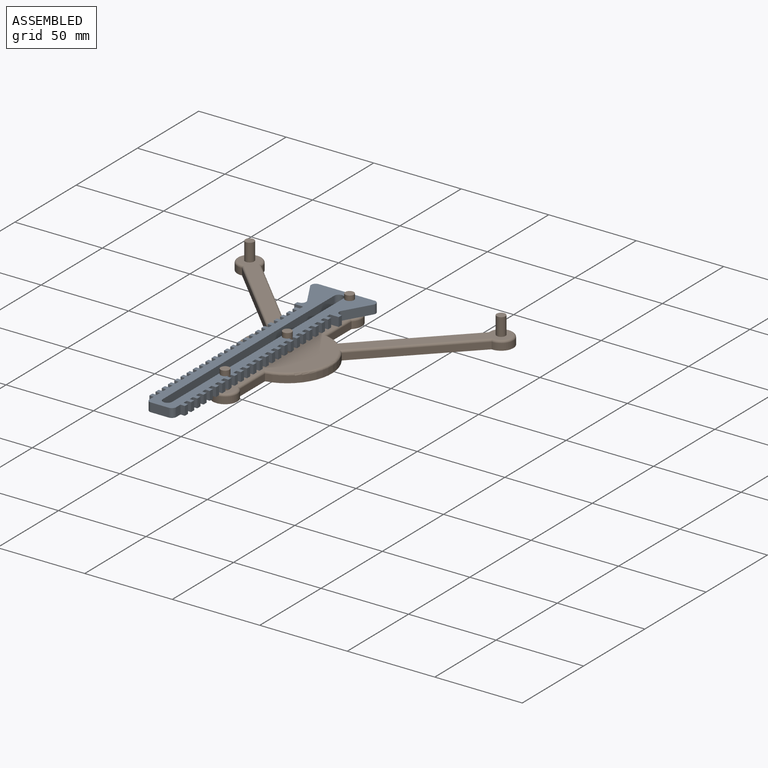
[diagram: assembled view]
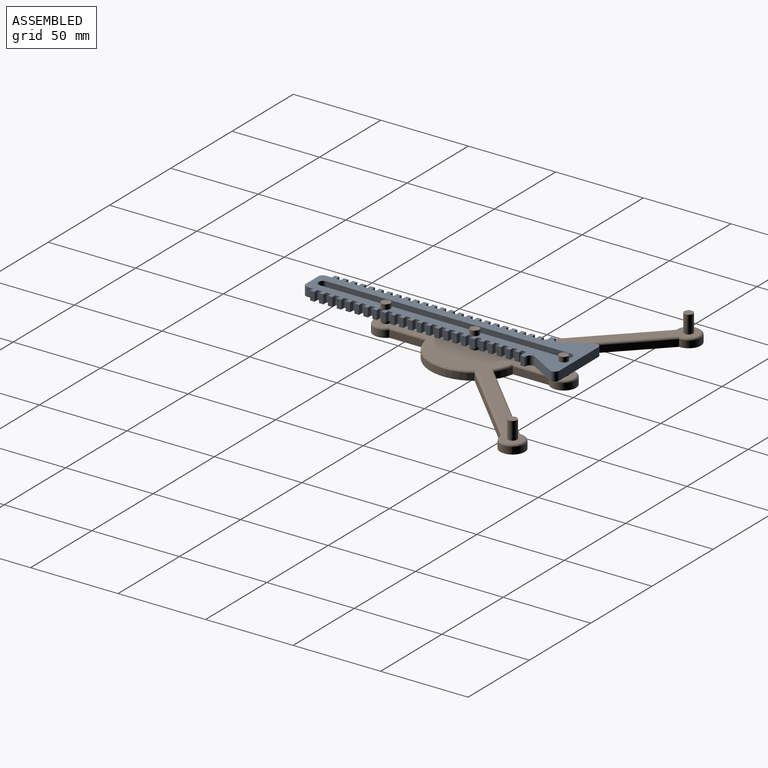
[diagram: assembled view, second angle]
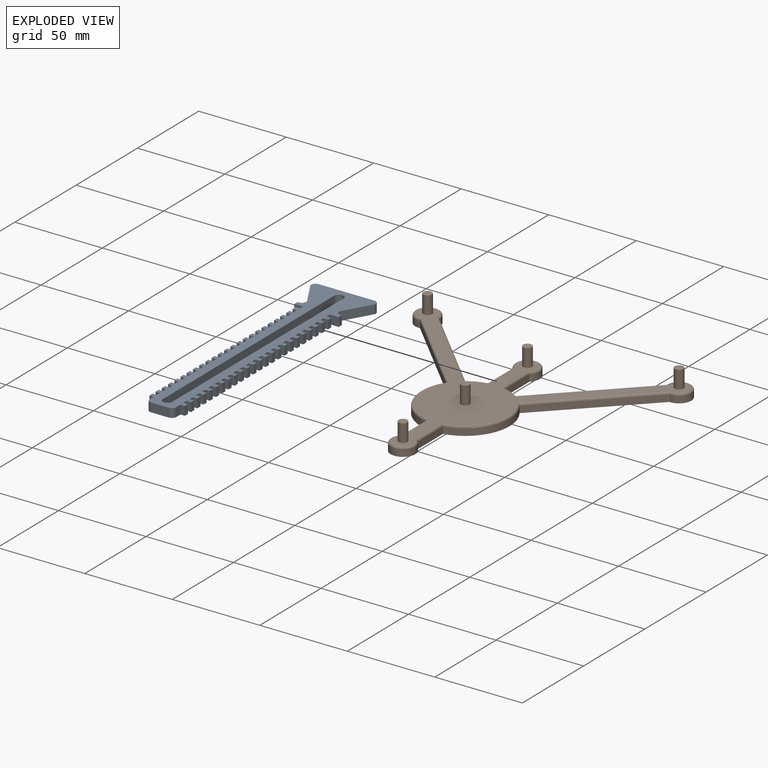
[diagram: exploded view]
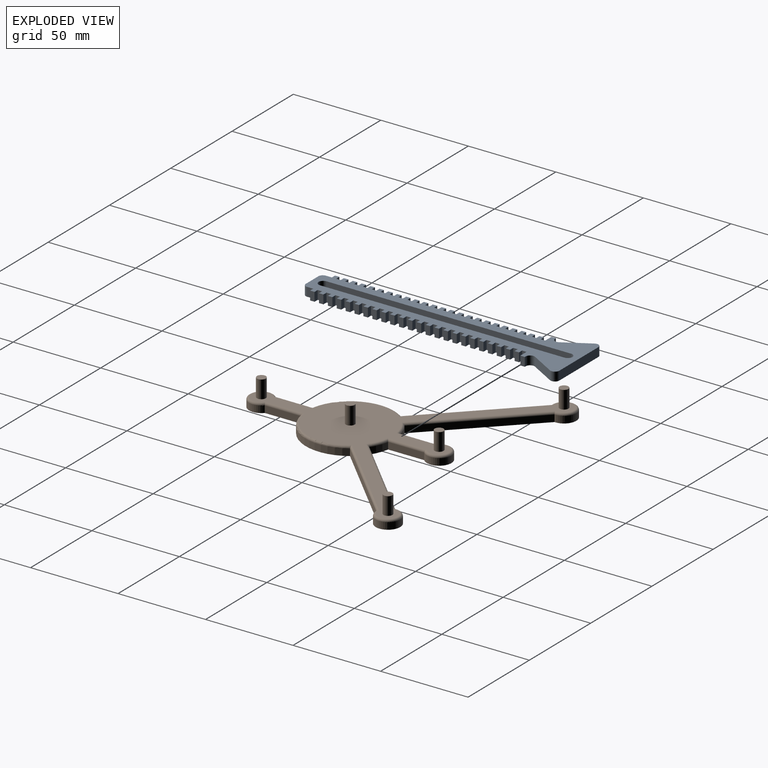
[diagram: exploded view, second angle]
ASSEMBLY  parts=2 mates=2
PART A: 216 faces, bbox 36.9x152.4x5.1 mm
  f0: cylinder r=2.67mm len=5.33mm, axis (0,0,-1), area 42.6mm2, adj f1,f207,f208,f209
  f1: plane 139.7x5.08mm, normal (-1,0,0), area 709.7mm2, adj f0,f2,f208,f209
  f2: cylinder r=2.67mm len=5.33mm, axis (0,0,-1), area 42.6mm2, adj f1,f207,f208,f209
  f3: plane 31.84x5.08mm, normal (0,-1,0), area 161.8mm2, adj f208,f209,f210,f211
  f4: plane 14.38x8.3mm, normal (0.87,0.5,0), area 84.3mm2, adj f208,f209,f211,f213
  f5: plane 5.08x0.68mm, normal (0,-1,0), area 3.5mm2, adj f6,f208,f209,f213
  f6: plane 5.08x2.54mm, normal (1,0,0), area 12.9mm2, adj f5,f7,f208,f209
  f7: plane 5.08x5.08mm, normal (0,1,0), area 25.8mm2, adj f6,f8,f208,f209
  f8: plane 5.08x2.54mm, normal (1,0,0), area 12.9mm2, adj f7,f9,f208,f209
  f9: plane 5.08x2.54mm, normal (0,-1,0), area 12.9mm2, adj f8,f10,f208,f209
  f10: plane 5.08x2.54mm, normal (1,0,0), area 12.9mm2, adj f9,f11,f208,f209
  f11: plane 5.08x2.54mm, normal (0,1,0), area 12.9mm2, adj f10,f12,f208,f209
  f12: plane 5.08x2.54mm, normal (1,0,0), area 12.9mm2, adj f11,f13,f208,f209
  f13: plane 5.08x2.54mm, normal (0,-1,0), area 12.9mm2, adj f12,f14,f208,f209
  f14: plane 5.08x2.54mm, normal (1,0,0), area 12.9mm2, adj f13,f15,f208,f209
  f15: plane 5.08x2.54mm, normal (0,1,0), area 12.9mm2, adj f14,f16,f208,f209
  f16: plane 5.08x2.54mm, normal (1,0,0), area 12.9mm2, adj f15,f17,f208,f209
  f17: plane 5.08x2.54mm, normal (0,-1,0), area 12.9mm2, adj f16,f18,f208,f209
  f18: plane 5.08x2.54mm, normal (1,0,0), area 12.9mm2, adj f17,f19,f208,f209
  f19: plane 5.08x2.54mm, normal (0,1,0), area 12.9mm2, adj f18,f20,f208,f209
  f20: plane 5.08x2.54mm, normal (1,0,0), area 12.9mm2, adj f19,f21,f208,f209
  f21: plane 5.08x2.54mm, normal (0,-1,0), area 12.9mm2, adj f20,f22,f208,f209
  f22: plane 5.08x2.54mm, normal (1,0,0), area 12.9mm2, adj f21,f23,f208,f209
  f23: plane 5.08x2.54mm, normal (0,1,0), area 12.9mm2, adj f22,f24,f208,f209
  f24: plane 5.08x2.54mm, normal (1,0,0), area 12.9mm2, adj f23,f25,f208,f209
  f25: plane 5.08x2.54mm, normal (0,-1,0), area 12.9mm2, adj f24,f26,f208,f209
  f26: plane 5.08x2.54mm, normal (1,0,0), area 12.9mm2, adj f25,f27,f208,f209
  f27: plane 5.08x2.54mm, normal (0,1,0), area 12.9mm2, adj f26,f28,f208,f209
  f28: plane 5.08x2.54mm, normal (1,0,0), area 12.9mm2, adj f27,f29,f208,f209
  f29: plane 5.08x2.54mm, normal (0,-1,0), area 12.9mm2, adj f28,f30,f208,f209
  f30: plane 5.08x2.54mm, normal (1,0,0), area 12.9mm2, adj f29,f31,f208,f209
  f31: plane 5.08x2.54mm, normal (0,1,0), area 12.9mm2, adj f30,f32,f208,f209
  f32: plane 5.08x2.54mm, normal (1,0,0), area 12.9mm2, adj f31,f33,f208,f209
  f33: plane 5.08x2.54mm, normal (0,-1,0), area 12.9mm2, adj f32,f34,f208,f209
  f34: plane 5.08x2.54mm, normal (1,0,0), area 12.9mm2, adj f33,f35,f208,f209
  f35: plane 5.08x2.54mm, normal (0,1,0), area 12.9mm2, adj f34,f36,f208,f209
  f36: plane 5.08x2.54mm, normal (1,0,0), area 12.9mm2, adj f35,f37,f208,f209
  f37: plane 5.08x2.54mm, normal (0,-1,0), area 12.9mm2, adj f36,f38,f208,f209
  f38: plane 5.08x2.54mm, normal (1,0,0), area 12.9mm2, adj f37,f39,f208,f209
  f39: plane 5.08x2.54mm, normal (0,1,0), area 12.9mm2, adj f38,f40,f208,f209
  f40: plane 5.08x2.54mm, normal (1,0,0), area 12.9mm2, adj f39,f41,f208,f209
  f41: plane 5.08x2.54mm, normal (0,-1,0), area 12.9mm2, adj f40,f42,f208,f209
  f42: plane 5.08x2.54mm, normal (1,0,0), area 12.9mm2, adj f41,f43,f208,f209
  f43: plane 5.08x2.54mm, normal (0,1,0), area 12.9mm2, adj f42,f44,f208,f209
  f44: plane 5.08x2.54mm, normal (1,0,0), area 12.9mm2, adj f43,f45,f208,f209
  f45: plane 5.08x2.54mm, normal (0,-1,0), area 12.9mm2, adj f44,f46,f208,f209
  f46: plane 5.08x2.54mm, normal (1,0,0), area 12.9mm2, adj f45,f47,f208,f209
  f47: plane 5.08x2.54mm, normal (0,1,0), area 12.9mm2, adj f46,f48,f208,f209
  f48: plane 5.08x2.54mm, normal (1,0,0), area 12.9mm2, adj f47,f49,f208,f209
  f49: plane 5.08x2.54mm, normal (0,-1,0), area 12.9mm2, adj f48,f50,f208,f209
  f50: plane 5.08x2.54mm, normal (1,0,0), area 12.9mm2, adj f49,f51,f208,f209
  f51: plane 5.08x2.54mm, normal (0,1,0), area 12.9mm2, adj f50,f52,f208,f209
  f52: plane 5.08x2.54mm, normal (1,0,0), area 12.9mm2, adj f51,f53,f208,f209
  f53: plane 5.08x2.54mm, normal (0,-1,0), area 12.9mm2, adj f52,f54,f208,f209
  f54: plane 5.08x2.54mm, normal (1,0,0), area 12.9mm2, adj f53,f55,f208,f209
  f55: plane 5.08x2.54mm, normal (0,1,0), area 12.9mm2, adj f54,f56,f208,f209
  f56: plane 5.08x2.54mm, normal (1,0,0), area 12.9mm2, adj f55,f57,f208,f209
  f57: plane 5.08x2.54mm, normal (0,-1,0), area 12.9mm2, adj f56,f58,f208,f209
  f58: plane 5.08x2.54mm, normal (1,0,0), area 12.9mm2, adj f57,f59,f208,f209
  f59: plane 5.08x2.54mm, normal (0,1,0), area 12.9mm2, adj f58,f60,f208,f209
  f60: plane 5.08x2.54mm, normal (1,0,0), area 12.9mm2, adj f59,f61,f208,f209
  f61: plane 5.08x2.54mm, normal (0,-1,0), area 12.9mm2, adj f60,f62,f208,f209
  f62: plane 5.08x2.54mm, normal (1,0,0), area 12.9mm2, adj f61,f63,f208,f209
  f63: plane 5.08x2.54mm, normal (0,1,0), area 12.9mm2, adj f62,f64,f208,f209
  f64: plane 5.08x2.54mm, normal (1,0,0), area 12.9mm2, adj f63,f65,f208,f209
  f65: plane 5.08x2.54mm, normal (0,-1,0), area 12.9mm2, adj f64,f66,f208,f209
  f66: plane 5.08x2.54mm, normal (1,0,0), area 12.9mm2, adj f65,f67,f208,f209
  f67: plane 5.08x2.54mm, normal (0,1,0), area 12.9mm2, adj f66,f68,f208,f209
  f68: plane 5.08x2.54mm, normal (1,0,0), area 12.9mm2, adj f67,f69,f208,f209
  f69: plane 5.08x2.54mm, normal (0,-1,0), area 12.9mm2, adj f68,f70,f208,f209
  f70: plane 5.08x2.54mm, normal (1,0,0), area 12.9mm2, adj f69,f71,f208,f209
  f71: plane 5.08x2.54mm, normal (0,1,0), area 12.9mm2, adj f70,f72,f208,f209
  f72: plane 5.08x2.54mm, normal (1,0,0), area 12.9mm2, adj f71,f73,f208,f209
  f73: plane 5.08x2.54mm, normal (0,-1,0), area 12.9mm2, adj f72,f74,f208,f209
  f74: plane 5.08x2.54mm, normal (1,0,0), area 12.9mm2, adj f73,f75,f208,f209
  f75: plane 5.08x2.54mm, normal (0,1,0), area 12.9mm2, adj f74,f76,f208,f209
  f76: plane 5.08x2.54mm, normal (1,0,0), area 12.9mm2, adj f75,f77,f208,f209
  f77: plane 5.08x2.54mm, normal (0,-1,0), area 12.9mm2, adj f76,f78,f208,f209
  f78: plane 5.08x2.54mm, normal (1,0,0), area 12.9mm2, adj f77,f79,f208,f209
  f79: plane 5.08x2.54mm, normal (0,1,0), area 12.9mm2, adj f78,f80,f208,f209
  f80: plane 5.08x2.54mm, normal (1,0,0), area 12.9mm2, adj f79,f81,f208,f209
  f81: plane 5.08x2.54mm, normal (0,-1,0), area 12.9mm2, adj f80,f82,f208,f209
  f82: plane 5.08x2.54mm, normal (1,0,0), area 12.9mm2, adj f81,f83,f208,f209
  f83: plane 5.08x2.54mm, normal (0,1,0), area 12.9mm2, adj f82,f84,f208,f209
  f84: plane 5.08x2.54mm, normal (1,0,0), area 12.9mm2, adj f83,f85,f208,f209
  f85: plane 5.08x2.54mm, normal (0,-1,0), area 12.9mm2, adj f84,f86,f208,f209
  f86: plane 5.08x2.54mm, normal (1,0,0), area 12.9mm2, adj f85,f87,f208,f209
  f87: plane 5.08x2.54mm, normal (0,1,0), area 12.9mm2, adj f86,f88,f208,f209
  f88: plane 5.08x2.54mm, normal (1,0,0), area 12.9mm2, adj f87,f89,f208,f209
  f89: plane 5.08x2.54mm, normal (0,-1,0), area 12.9mm2, adj f88,f90,f208,f209
  f90: plane 5.08x2.54mm, normal (1,0,0), area 12.9mm2, adj f89,f91,f208,f209
  f91: plane 5.08x2.54mm, normal (0,1,0), area 12.9mm2, adj f90,f92,f208,f209
  f92: plane 5.08x2.54mm, normal (1,0,0), area 12.9mm2, adj f91,f93,f208,f209
  f93: plane 5.08x2.54mm, normal (0,-1,0), area 12.9mm2, adj f92,f94,f208,f209
  f94: plane 5.08x2.54mm, normal (1,0,0), area 12.9mm2, adj f93,f95,f208,f209
  f95: plane 5.08x2.54mm, normal (0,1,0), area 12.9mm2, adj f94,f96,f208,f209
  f96: plane 5.08x2.54mm, normal (1,0,0), area 12.9mm2, adj f95,f97,f208,f209
  f97: plane 5.08x2.54mm, normal (0,-1,0), area 12.9mm2, adj f96,f98,f208,f209
  f98: plane 5.08x2.54mm, normal (1,0,0), area 12.9mm2, adj f97,f99,f208,f209
  f99: plane 5.08x2.54mm, normal (0,1,0), area 12.9mm2, adj f98,f100,f208,f209
  f100: plane 5.08x2.54mm, normal (1,0,0), area 12.9mm2, adj f99,f101,f208,f209
  f101: plane 5.08x2.54mm, normal (0,-1,0), area 12.9mm2, adj f100,f102,f208,f209
  f102: plane 5.08x2.54mm, normal (1,0,0), area 12.9mm2, adj f101,f103,f208,f209
  f103: plane 5.08x2.54mm, normal (0,1,0), area 12.9mm2, adj f102,f104,f208,f209
  f104: plane 5.08x3.4mm, normal (1,0,0), area 17.3mm2, adj f103,f208,f209,f214
  f105: plane 10.16x5.08mm, normal (0,1,0), area 51.6mm2, adj f208,f209,f214,f215
  f106: plane 5.08x3.4mm, normal (-1,0,0), area 17.3mm2, adj f107,f208,f209,f215
  f107: plane 5.08x2.54mm, normal (0,1,0), area 12.9mm2, adj f106,f108,f208,f209
  f108: plane 5.08x2.54mm, normal (-1,0,0), area 12.9mm2, adj f107,f109,f208,f209
  f109: plane 5.08x2.54mm, normal (0,-1,0), area 12.9mm2, adj f108,f110,f208,f209
  f110: plane 5.08x2.54mm, normal (-1,0,0), area 12.9mm2, adj f109,f111,f208,f209
  f111: plane 5.08x2.54mm, normal (0,1,0), area 12.9mm2, adj f110,f112,f208,f209
  f112: plane 5.08x2.54mm, normal (-1,0,0), area 12.9mm2, adj f111,f113,f208,f209
  f113: plane 5.08x2.54mm, normal (0,-1,0), area 12.9mm2, adj f112,f114,f208,f209
  f114: plane 5.08x2.54mm, normal (-1,0,0), area 12.9mm2, adj f113,f115,f208,f209
  f115: plane 5.08x2.54mm, normal (0,1,0), area 12.9mm2, adj f114,f116,f208,f209
  f116: plane 5.08x2.54mm, normal (-1,0,0), area 12.9mm2, adj f115,f117,f208,f209
  f117: plane 5.08x2.54mm, normal (0,-1,0), area 12.9mm2, adj f116,f118,f208,f209
  f118: plane 5.08x2.54mm, normal (-1,0,0), area 12.9mm2, adj f117,f119,f208,f209
  f119: plane 5.08x2.54mm, normal (0,1,0), area 12.9mm2, adj f118,f120,f208,f209
  f120: plane 5.08x2.54mm, normal (-1,0,0), area 12.9mm2, adj f119,f121,f208,f209
  f121: plane 5.08x2.54mm, normal (0,-1,0), area 12.9mm2, adj f120,f122,f208,f209
  f122: plane 5.08x2.54mm, normal (-1,0,0), area 12.9mm2, adj f121,f123,f208,f209
  f123: plane 5.08x2.54mm, normal (0,1,0), area 12.9mm2, adj f122,f124,f208,f209
  f124: plane 5.08x2.54mm, normal (-1,0,0), area 12.9mm2, adj f123,f125,f208,f209
  f125: plane 5.08x2.54mm, normal (0,-1,0), area 12.9mm2, adj f124,f126,f208,f209
  f126: plane 5.08x2.54mm, normal (-1,0,0), area 12.9mm2, adj f125,f127,f208,f209
  f127: plane 5.08x2.54mm, normal (0,1,0), area 12.9mm2, adj f126,f128,f208,f209
  f128: plane 5.08x2.54mm, normal (-1,0,0), area 12.9mm2, adj f127,f129,f208,f209
  f129: plane 5.08x2.54mm, normal (0,-1,0), area 12.9mm2, adj f128,f130,f208,f209
  f130: plane 5.08x2.54mm, normal (-1,0,0), area 12.9mm2, adj f129,f131,f208,f209
  f131: plane 5.08x2.54mm, normal (0,1,0), area 12.9mm2, adj f130,f132,f208,f209
  f132: plane 5.08x2.54mm, normal (-1,0,0), area 12.9mm2, adj f131,f133,f208,f209
  f133: plane 5.08x2.54mm, normal (0,-1,0), area 12.9mm2, adj f132,f134,f208,f209
  f134: plane 5.08x2.54mm, normal (-1,0,0), area 12.9mm2, adj f133,f135,f208,f209
  f135: plane 5.08x2.54mm, normal (0,1,0), area 12.9mm2, adj f134,f136,f208,f209
  f136: plane 5.08x2.54mm, normal (-1,0,0), area 12.9mm2, adj f135,f137,f208,f209
  f137: plane 5.08x2.54mm, normal (0,-1,0), area 12.9mm2, adj f136,f138,f208,f209
  f138: plane 5.08x2.54mm, normal (-1,0,0), area 12.9mm2, adj f137,f139,f208,f209
  f139: plane 5.08x2.54mm, normal (0,1,0), area 12.9mm2, adj f138,f140,f208,f209
  f140: plane 5.08x2.54mm, normal (-1,0,0), area 12.9mm2, adj f139,f141,f208,f209
  f141: plane 5.08x2.54mm, normal (0,-1,0), area 12.9mm2, adj f140,f142,f208,f209
  f142: plane 5.08x2.54mm, normal (-1,0,0), area 12.9mm2, adj f141,f143,f208,f209
  f143: plane 5.08x2.54mm, normal (0,1,0), area 12.9mm2, adj f142,f144,f208,f209
  f144: plane 5.08x2.54mm, normal (-1,0,0), area 12.9mm2, adj f143,f145,f208,f209
  f145: plane 5.08x2.54mm, normal (0,-1,0), area 12.9mm2, adj f144,f146,f208,f209
  f146: plane 5.08x2.54mm, normal (-1,0,0), area 12.9mm2, adj f145,f147,f208,f209
  f147: plane 5.08x2.54mm, normal (0,1,0), area 12.9mm2, adj f146,f148,f208,f209
  f148: plane 5.08x2.54mm, normal (-1,0,0), area 12.9mm2, adj f147,f149,f208,f209
  f149: plane 5.08x2.54mm, normal (0,-1,0), area 12.9mm2, adj f148,f150,f208,f209
  f150: plane 5.08x2.54mm, normal (-1,0,0), area 12.9mm2, adj f149,f151,f208,f209
  f151: plane 5.08x2.54mm, normal (0,1,0), area 12.9mm2, adj f150,f152,f208,f209
  f152: plane 5.08x2.54mm, normal (-1,0,0), area 12.9mm2, adj f151,f153,f208,f209
  f153: plane 5.08x2.54mm, normal (0,-1,0), area 12.9mm2, adj f152,f154,f208,f209
  f154: plane 5.08x2.54mm, normal (-1,0,0), area 12.9mm2, adj f153,f155,f208,f209
  f155: plane 5.08x2.54mm, normal (0,1,0), area 12.9mm2, adj f154,f156,f208,f209
  f156: plane 5.08x2.54mm, normal (-1,0,0), area 12.9mm2, adj f155,f157,f208,f209
  f157: plane 5.08x2.54mm, normal (0,-1,0), area 12.9mm2, adj f156,f158,f208,f209
  f158: plane 5.08x2.54mm, normal (-1,0,0), area 12.9mm2, adj f157,f159,f208,f209
  f159: plane 5.08x2.54mm, normal (0,1,0), area 12.9mm2, adj f158,f160,f208,f209
  f160: plane 5.08x2.54mm, normal (-1,0,0), area 12.9mm2, adj f159,f161,f208,f209
  f161: plane 5.08x2.54mm, normal (0,-1,0), area 12.9mm2, adj f160,f162,f208,f209
  f162: plane 5.08x2.54mm, normal (-1,0,0), area 12.9mm2, adj f161,f163,f208,f209
  f163: plane 5.08x2.54mm, normal (0,1,0), area 12.9mm2, adj f162,f164,f208,f209
  f164: plane 5.08x2.54mm, normal (-1,0,0), area 12.9mm2, adj f163,f165,f208,f209
  f165: plane 5.08x2.54mm, normal (0,-1,0), area 12.9mm2, adj f164,f166,f208,f209
  f166: plane 5.08x2.54mm, normal (-1,0,0), area 12.9mm2, adj f165,f167,f208,f209
  f167: plane 5.08x2.54mm, normal (0,1,0), area 12.9mm2, adj f166,f168,f208,f209
  f168: plane 5.08x2.54mm, normal (-1,0,0), area 12.9mm2, adj f167,f169,f208,f209
  f169: plane 5.08x2.54mm, normal (0,-1,0), area 12.9mm2, adj f168,f170,f208,f209
  f170: plane 5.08x2.54mm, normal (-1,0,0), area 12.9mm2, adj f169,f171,f208,f209
  f171: plane 5.08x2.54mm, normal (0,1,0), area 12.9mm2, adj f170,f172,f208,f209
  f172: plane 5.08x2.54mm, normal (-1,0,0), area 12.9mm2, adj f171,f173,f208,f209
  f173: plane 5.08x2.54mm, normal (0,-1,0), area 12.9mm2, adj f172,f174,f208,f209
  f174: plane 5.08x2.54mm, normal (-1,0,0), area 12.9mm2, adj f173,f175,f208,f209
  f175: plane 5.08x2.54mm, normal (0,1,0), area 12.9mm2, adj f174,f176,f208,f209
  f176: plane 5.08x2.54mm, normal (-1,0,0), area 12.9mm2, adj f175,f177,f208,f209
  f177: plane 5.08x2.54mm, normal (0,-1,0), area 12.9mm2, adj f176,f178,f208,f209
  f178: plane 5.08x2.54mm, normal (-1,0,0), area 12.9mm2, adj f177,f179,f208,f209
  f179: plane 5.08x2.54mm, normal (0,1,0), area 12.9mm2, adj f178,f180,f208,f209
  f180: plane 5.08x2.54mm, normal (-1,0,0), area 12.9mm2, adj f179,f181,f208,f209
  f181: plane 5.08x2.54mm, normal (0,-1,0), area 12.9mm2, adj f180,f182,f208,f209
  f182: plane 5.08x2.54mm, normal (-1,0,0), area 12.9mm2, adj f181,f183,f208,f209
  f183: plane 5.08x2.54mm, normal (0,1,0), area 12.9mm2, adj f182,f184,f208,f209
  f184: plane 5.08x2.54mm, normal (-1,0,0), area 12.9mm2, adj f183,f185,f208,f209
  f185: plane 5.08x2.54mm, normal (0,-1,0), area 12.9mm2, adj f184,f186,f208,f209
  f186: plane 5.08x2.54mm, normal (-1,0,0), area 12.9mm2, adj f185,f187,f208,f209
  f187: plane 5.08x2.54mm, normal (0,1,0), area 12.9mm2, adj f186,f188,f208,f209
  f188: plane 5.08x2.54mm, normal (-1,0,0), area 12.9mm2, adj f187,f189,f208,f209
  f189: plane 5.08x2.54mm, normal (0,-1,0), area 12.9mm2, adj f188,f190,f208,f209
  f190: plane 5.08x2.54mm, normal (-1,0,0), area 12.9mm2, adj f189,f191,f208,f209
  f191: plane 5.08x2.54mm, normal (0,1,0), area 12.9mm2, adj f190,f192,f208,f209
  f192: plane 5.08x2.54mm, normal (-1,0,0), area 12.9mm2, adj f191,f193,f208,f209
  f193: plane 5.08x2.54mm, normal (0,-1,0), area 12.9mm2, adj f192,f194,f208,f209
  f194: plane 5.08x2.54mm, normal (-1,0,0), area 12.9mm2, adj f193,f195,f208,f209
  f195: plane 5.08x2.54mm, normal (0,1,0), area 12.9mm2, adj f194,f196,f208,f209
  f196: plane 5.08x2.54mm, normal (-1,0,0), area 12.9mm2, adj f195,f197,f208,f209
  f197: plane 5.08x2.54mm, normal (0,-1,0), area 12.9mm2, adj f196,f198,f208,f209
  f198: plane 5.08x2.54mm, normal (-1,0,0), area 12.9mm2, adj f197,f199,f208,f209
  f199: plane 5.08x2.54mm, normal (0,1,0), area 12.9mm2, adj f198,f200,f208,f209
  f200: plane 5.08x2.54mm, normal (-1,0,0), area 12.9mm2, adj f199,f201,f208,f209
  f201: plane 5.08x2.54mm, normal (0,-1,0), area 12.9mm2, adj f200,f202,f208,f209
  f202: plane 5.08x2.54mm, normal (-1,0,0), area 12.9mm2, adj f201,f203,f208,f209
  f203: plane 5.08x5.08mm, normal (0,1,0), area 25.8mm2, adj f202,f204,f208,f209
  f204: plane 5.08x2.54mm, normal (-1,0,0), area 12.9mm2, adj f203,f205,f208,f209
  f205: plane 5.08x0.68mm, normal (0,-1,0), area 3.5mm2, adj f204,f208,f209,f212
  f206: plane 14.38x8.3mm, normal (-0.87,0.5,0), area 84.3mm2, adj f208,f209,f210,f212
  f207: plane 139.7x5.08mm, normal (1,0,0), area 709.7mm2, adj f0,f2,f208,f209
  f208: plane 152.4x36.92mm, normal (0,0,1), area 2167.1mm2, adj f0,f1,f2,f3,f4,f5,f6,f7
  f209: plane 152.4x36.92mm, normal (0,0,-1), area 2167.1mm2, adj f0,f1,f2,f3,f4,f5,f6,f7
  f210: cylinder r=2.54mm len=5.08mm, axis (0,0,-1), area 27mm2, adj f3,f206,f208,f209
  f211: cylinder r=2.54mm len=5.08mm, axis (0,0,1), area 27mm2, adj f3,f4,f208,f209
  f212: cylinder r=2.54mm len=5.08mm, axis (0,0,1), area 27mm2, adj f205,f206,f208,f209
  f213: cylinder r=2.54mm len=5.08mm, axis (0,0,1), area 27mm2, adj f4,f5,f208,f209
  f214: cylinder r=2.54mm len=5.08mm, axis (0,0,-1), area 20.3mm2, adj f104,f105,f208,f209
  f215: cylinder r=2.54mm len=5.08mm, axis (0,0,1), area 20.3mm2, adj f105,f106,f208,f209
PART B: 44 faces, bbox 158.9x137.8x15.2 mm
  f0: cylinder r=7.02mm len=14.04mm, axis (0,0,-1), area 128.7mm2, adj f1,f15,f17,f18
  f1: plane 20.63x3.81mm, normal (1,0,0), area 78.6mm2, adj f0,f2,f17,f19
  f2: cylinder r=25.4mm len=39.41mm, axis (0,0,-1), area 192.5mm2, adj f1,f3,f17,f21
  f3: plane 50.4x50.4mm, normal (0.71,-0.71,0), area 271.5mm2, adj f2,f4,f17,f23
  f4: cylinder r=7.02mm len=14.04mm, axis (0,0,-1), area 130.3mm2, adj f3,f5,f17,f25
  f5: plane 50.4x50.4mm, normal (-0.71,0.71,0), area 271.5mm2, adj f4,f6,f17,f27
  f6: cylinder r=25.4mm len=9.74mm, axis (0,0,-1), area 40.5mm2, adj f5,f7,f17,f29
  f7: plane 20.63x3.81mm, normal (1,0,0), area 78.6mm2, adj f6,f8,f17,f31
  f8: cylinder r=7.02mm len=14.04mm, axis (0,0,-1), area 128.7mm2, adj f7,f9,f17,f33
  f9: plane 20.63x3.81mm, normal (-1,0,0), area 78.6mm2, adj f8,f10,f17,f32
  f10: cylinder r=25.4mm len=9.74mm, axis (0,0,-1), area 40.5mm2, adj f9,f11,f17,f30
  f11: plane 50.4x50.4mm, normal (0.71,0.71,0), area 271.5mm2, adj f10,f12,f17,f28
  f12: cylinder r=7.02mm len=14.04mm, axis (0,0,-1), area 130.3mm2, adj f11,f13,f17,f26
  f13: plane 50.4x50.4mm, normal (-0.71,-0.71,0), area 271.5mm2, adj f12,f14,f17,f24
  f14: cylinder r=25.4mm len=39.41mm, axis (0,0,-1), area 192.5mm2, adj f13,f15,f17,f22
  f15: plane 20.63x3.81mm, normal (-1,0,0), area 78.6mm2, adj f0,f14,f17,f20
  f16: plane 155.18x134.14mm, normal (0,0,1), area 3383.6mm2, adj f18,f19,f20,f21,f22,f23,f24,f25
  f17: plane 157.72x136.68mm, normal (0,0,-1), area 4277mm2, adj f0,f1,f2,f3,f4,f5,f6,f7
  f18: torus R=5.75mm, axis (0,0,1), area 63.8mm2, adj f0,f16,f19,f20
  f19: cylinder r=1.27mm len=22.31mm, axis (0,-1,0), area 42.4mm2, adj f1,f16,f18,f21
  f20: cylinder r=1.27mm len=22.31mm, axis (0,1,0), area 42.4mm2, adj f15,f16,f18,f22
  f21: torus R=24.13mm, axis (0,0,1), area 100.5mm2, adj f2,f16,f19,f23
  f22: torus R=24.13mm, axis (0,0,1), area 100.5mm2, adj f14,f16,f20,f24
  f23: cylinder r=1.27mm len=52.5mm, axis (-0.71,-0.71,0), area 143.4mm2, adj f3,f16,f21,f25
  f24: cylinder r=1.27mm len=52.5mm, axis (-0.71,0.71,0), area 143.4mm2, adj f13,f16,f22,f26
  f25: torus R=5.75mm, axis (0,0,1), area 64.6mm2, adj f4,f16,f23,f27
  f26: torus R=5.75mm, axis (0,0,1), area 64.6mm2, adj f12,f16,f24,f28
  f27: cylinder r=1.27mm len=52.5mm, axis (0.71,0.71,0), area 143.4mm2, adj f5,f16,f25,f29
  f28: cylinder r=1.27mm len=52.5mm, axis (0.71,-0.71,0), area 143.4mm2, adj f11,f16,f26,f30
  f29: torus R=24.13mm, axis (0,0,1), area 22.4mm2, adj f6,f16,f27,f31
  f30: torus R=24.13mm, axis (0,0,1), area 22.4mm2, adj f10,f16,f28,f32
  f31: cylinder r=1.27mm len=22.31mm, axis (0,-1,0), area 42.4mm2, adj f7,f16,f29,f33
  f32: cylinder r=1.27mm len=22.31mm, axis (0,1,0), area 42.4mm2, adj f9,f16,f30,f33
  f33: torus R=5.75mm, axis (0,0,1), area 63.8mm2, adj f8,f16,f31,f32
  f34: cylinder r=2.54mm len=10.16mm, axis (0,0,-1), area 162.1mm2, adj f16,f35
  f35: plane 5.08x5.08mm, normal (0,0,1), area 20.3mm2, adj f34
  f36: cylinder r=2.54mm len=10.16mm, axis (0,0,-1), area 162.1mm2, adj f16,f37
  f37: plane 5.08x5.08mm, normal (0,0,1), area 20.3mm2, adj f36
  f38: cylinder r=2.54mm len=10.16mm, axis (0,0,-1), area 162.1mm2, adj f16,f39
  f39: plane 5.08x5.08mm, normal (0,0,1), area 20.3mm2, adj f38
  f40: cylinder r=2.54mm len=10.16mm, axis (0,0,-1), area 162.1mm2, adj f16,f41
  f41: plane 5.08x5.08mm, normal (0,0,1), area 20.3mm2, adj f40
  f42: cylinder r=2.54mm len=10.16mm, axis (0,0,-1), area 162.1mm2, adj f16,f43
  f43: plane 5.08x5.08mm, normal (0,0,1), area 20.3mm2, adj f42
PLACE A rot(axis=(0,0,-1),180deg) t=(-8.53,-28.93,1.73)mm
PLACE B t=(-3.32,-8.52,-5.59)mm fixed
MATE parallel B.f7 <-> A.f188  axis (1,0,0) through (1.38,26.76,-3.69)mm
MATE parallel A.f208 <-> B.f16  axis (0,0,1) through (-16.15,-0.12,6.81)mm
